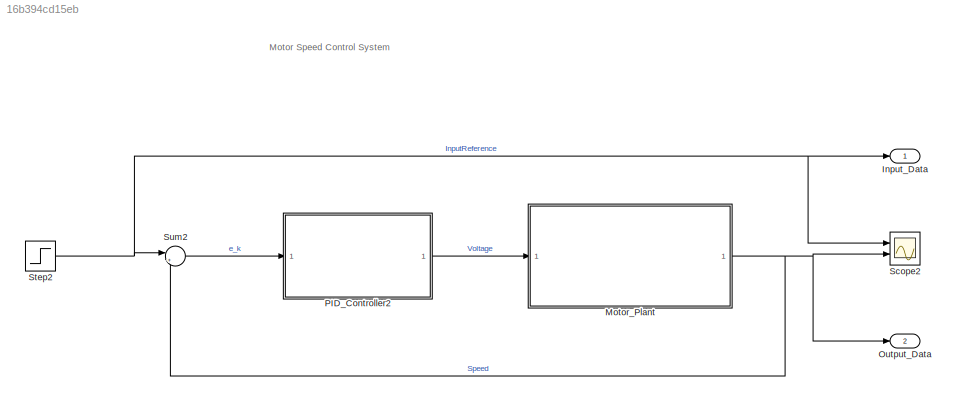
MODEL slx_16b394cd15eb
KIND model
CONFIG AbsTol = auto
CONFIG EnableMultiTasking = off
CONFIG FixedStep = Ts
CONFIG MaxStep = auto
CONFIG MinStep = auto
CONFIG PostLoadFcn = load('MotorSpeedTask2_Parameters.mat')\nload('Parameters.mat')
CONFIG PreLoadFcn = load('MotorSpeedTask2_Parameters.mat')\nload('Parameters.mat')
CONFIG RelTol = 1e-3
CONFIG SampleTimeConstraint = Unconstrained
CONFIG SolverName = VariableStepAuto
CONFIG StartTime = 0.0
CONFIG StopTime = 100
BLOCK [Outport] Input_Data
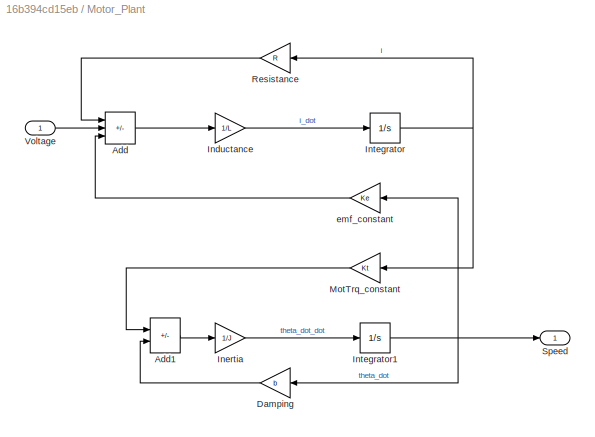
BLOCK [SubSystem] Motor_Plant
  Ports = [1, 1]
  RequestExecContextInheritance = off
BLOCK [Sum] Motor_Plant/Add
  IconShape = rectangular
  Inputs = -+-
  Ports = [3, 1]
BLOCK [Sum] Motor_Plant/Add1
  IconShape = rectangular
  Inputs = +-
  Ports = [2, 1]
BLOCK [Gain] Motor_Plant/Damping
  Gain = b
BLOCK [Gain] Motor_Plant/Inductance
  Gain = 1/L
BLOCK [Gain] Motor_Plant/Inertia
  Gain = 1/J
BLOCK [Integrator] Motor_Plant/Integrator
  Ports = [1, 1]
BLOCK [Integrator] Motor_Plant/Integrator1
  Ports = [1, 1]
BLOCK [Gain] Motor_Plant/MotTrq_constant
  Gain = Kt
  NameLocation = top
BLOCK [Gain] Motor_Plant/Resistance
  Gain = R
BLOCK [Outport] Motor_Plant/Speed
BLOCK [Inport] Motor_Plant/Voltage
BLOCK [Gain] Motor_Plant/emf_constant
  Gain = Ke
  NameLocation = top
BLOCK [Outport] Output_Data
  Port = 2
BLOCK [ModelReference] PID_Controller2
  ModelNameDialog = PID_Controller_referenceModel.slx
  ModelReferenceVersion = 1.16
  Ports = [1, 1]
BLOCK [Scope] Scope2
  Floating = off
  NumInputPorts = 2
  Ports = [2]
  ScopeSpecificationString = Simulink.scopes.TimeScopeBlockCfg('CurrentConfiguration', extmgr.ConfigurationSet(extmgr.Configuration('Core','General UI',true),extmgr.Configuration('Core','Source UI',true),extmgr.Configuration('Sources','WiredSimulink',true),extmgr.Configuration('Visuals','Time Domain',true,'SerializedDisplays',{struct('MinYLimReal','-12.5','MaxYLimReal','112.5','YLabelReal','','MinYLimMag','0.00000','MaxYLimMa...<+2270ch>
BLOCK [Step] Step2
  After = 100
  SampleTime = 0
BLOCK [Sum] Sum2
  Inputs = |+-
  Ports = [2, 1]
ANNOTATION (root): Motor Speed Control System
LINE Motor_Plant/Add1:1 -> Motor_Plant/Inertia:1
LINE Motor_Plant/Add:1 -> Motor_Plant/Inductance:1
LINE Motor_Plant/Damping:1 -> Motor_Plant/Add1:2
LINE Motor_Plant/Inductance:1 -> Motor_Plant/Integrator:1
LINE Motor_Plant/Inertia:1 -> Motor_Plant/Integrator1:1
NET Motor_Plant/Integrator1:1 -> Motor_Plant/Damping:1, Motor_Plant/Speed:1, Motor_Plant/emf_constant:1
NET Motor_Plant/Integrator:1 -> Motor_Plant/MotTrq_constant:1, Motor_Plant/Resistance:1
LINE Motor_Plant/MotTrq_constant:1 -> Motor_Plant/Add1:1
LINE Motor_Plant/Resistance:1 -> Motor_Plant/Add:1
LINE Motor_Plant/Voltage:1 -> Motor_Plant/Add:2
LINE Motor_Plant/emf_constant:1 -> Motor_Plant/Add:3
NET Motor_Plant:1 -> Output_Data:1, Scope2:2, Sum2:2
LINE PID_Controller2:1 -> Motor_Plant:1
NET Step2:1 -> Input_Data:1, Scope2:1, Sum2:1
LINE Sum2:1 -> PID_Controller2:1
note: NET lines group one-source signal fan-out (src -> all destinations, sorted); 1:1 wires keep LINE
